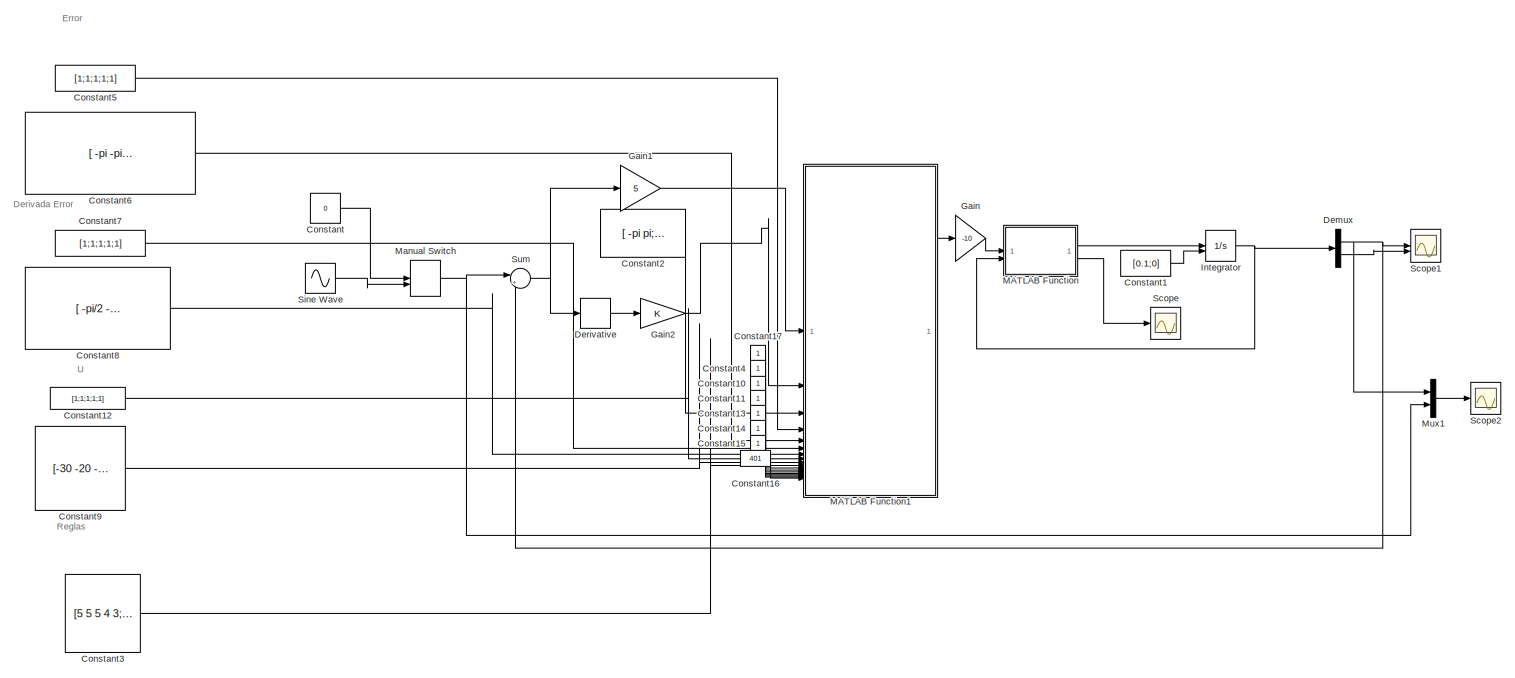
[diagram: root canvas - part 1/2, most of the canvas]
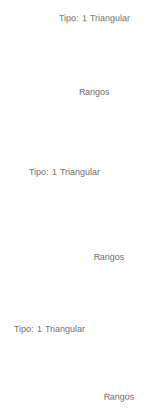
[diagram: root canvas - part 2/2, middle left region]
MODEL slx_3a1ebc4a5ca5
KIND model
CONFIG AbsTol = auto
CONFIG EnableMultiTasking = off
CONFIG FixedStep = auto
CONFIG MaxStep = auto
CONFIG MinStep = auto
CONFIG RelTol = 1e-3
CONFIG SampleTimeConstraint = Unconstrained
CONFIG SolverName = ode45
CONFIG StartTime = 0.0
CONFIG StopTime = 10
BLOCK [Constant] Constant
  Value = 0
BLOCK [Constant] Constant1
  Value = [0.1;0]
BLOCK [Constant] Constant10
BLOCK [Constant] Constant11
BLOCK [Constant] Constant12
  NameLocation = right
  Value = [1;1;1;1;1]
BLOCK [Constant] Constant13
BLOCK [Constant] Constant14
BLOCK [Constant] Constant15
BLOCK [Constant] Constant16
  Value = 401
BLOCK [Constant] Constant17
BLOCK [Constant] Constant2
  Value = [ -pi   pi;-pi/2 pi/2;-30   30 ]
BLOCK [Constant] Constant3
  Value = [5 5 5 4 3;\n5 5 4 3 2;\n             5 4 3 2 1;\n             4 3 2 1 1;\n             3 2 1 1 1]
BLOCK [Constant] Constant4
BLOCK [Constant] Constant5
  Value = [1;1;1;1;1]
BLOCK [Constant] Constant6
  Value = [ -pi   -pi/2   -pi/4;\n  -pi/2   -pi/4   0;\n  -pi/4   0     pi/4 ;\n   0     pi/4   pi/2 ;\n   pi/4   pi/2    pi ]
BLOCK [Constant] Constant7
  Value = [1;1;1;1;1]
BLOCK [Constant] Constant8
  Value = [ -pi/2   -pi/4   -pi/8;\n  -pi/4   -pi/8   0;\n  -pi/8   0     pi/8 ;\n   0     pi/8   pi/4 ;\n   pi/8   pi/4    pi/2 ]
BLOCK [Constant] Constant9
  Value = [-30 -20 -10; -20 -10 -0; -10 0 10; 0 10 20; 10 20 30]
BLOCK [Demux] Demux
  Outputs = 2
BLOCK [Derivative] Derivative
BLOCK [Gain] Gain
  Gain = -10
BLOCK [Gain] Gain1
  Gain = 5
BLOCK [Gain] Gain2
BLOCK [Integrator] Integrator
  InitialConditionSource = external
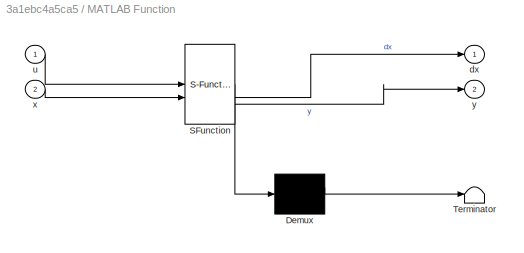
BLOCK [SubSystem] MATLAB Function
  ErrorFcn = Stateflow.Translate.translate
  PermitHierarchicalResolution = ExplicitOnly
  SFBlockType = MATLAB Function
  TreatAsAtomicUnit = on
BLOCK [Demux] MATLAB Function/ Demux 
  Outputs = 1
BLOCK [S-Function] MATLAB Function/ SFunction 
  EnableBusSupport = on
  FunctionName = sf_sfun
  PortCounts = [2 3]
  SFcnIsStateOwnerBlock = off
  SFunctionDeploymentMode = off
  Tag = Stateflow S-Function 2
BLOCK [Terminator] MATLAB Function/ Terminator 
BLOCK [Outport] MATLAB Function/dx
BLOCK [Inport] MATLAB Function/u
BLOCK [Inport] MATLAB Function/x
  Port = 2
BLOCK [Outport] MATLAB Function/y
  Port = 2
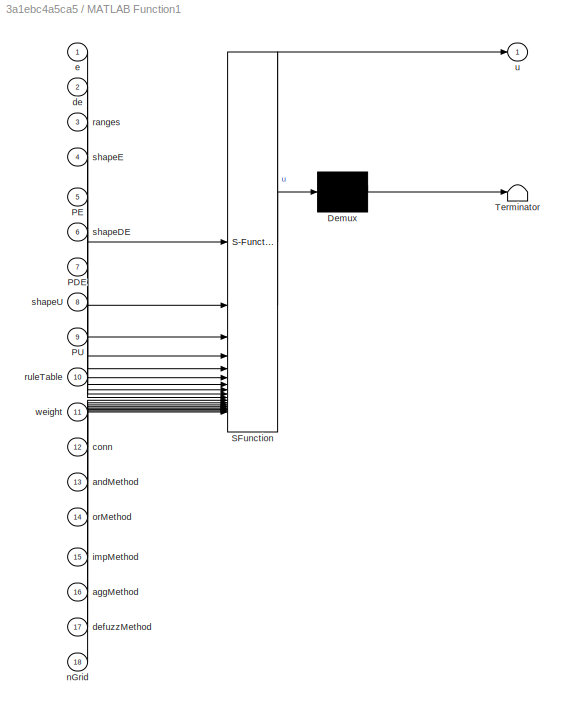
BLOCK [SubSystem] MATLAB Function1
  ErrorFcn = Stateflow.Translate.translate
  PermitHierarchicalResolution = ExplicitOnly
  SFBlockType = MATLAB Function
  TreatAsAtomicUnit = on
BLOCK [Demux] MATLAB Function1/ Demux 
  Outputs = 1
BLOCK [S-Function] MATLAB Function1/ SFunction 
  EnableBusSupport = on
  FunctionName = sf_sfun
  PortCounts = [18 2]
  SFcnIsStateOwnerBlock = off
  SFunctionDeploymentMode = off
  Tag = Stateflow S-Function 1
BLOCK [Terminator] MATLAB Function1/ Terminator 
BLOCK [Inport] MATLAB Function1/PDE
  Port = 7
BLOCK [Inport] MATLAB Function1/PE
  Port = 5
BLOCK [Inport] MATLAB Function1/PU
  Port = 9
BLOCK [Inport] MATLAB Function1/aggMethod
  Port = 16
BLOCK [Inport] MATLAB Function1/andMethod
  Port = 13
BLOCK [Inport] MATLAB Function1/conn
  Port = 12
BLOCK [Inport] MATLAB Function1/de
  Port = 2
BLOCK [Inport] MATLAB Function1/defuzzMethod
  Port = 17
BLOCK [Inport] MATLAB Function1/e
BLOCK [Inport] MATLAB Function1/impMethod
  Port = 15
BLOCK [Inport] MATLAB Function1/nGrid
  Port = 18
BLOCK [Inport] MATLAB Function1/orMethod
  Port = 14
BLOCK [Inport] MATLAB Function1/ranges
  Port = 3
BLOCK [Inport] MATLAB Function1/ruleTable
  Port = 10
BLOCK [Inport] MATLAB Function1/shapeDE
  Port = 6
BLOCK [Inport] MATLAB Function1/shapeE
  Port = 4
BLOCK [Inport] MATLAB Function1/shapeU
  Port = 8
BLOCK [Outport] MATLAB Function1/u
BLOCK [Inport] MATLAB Function1/weight
  Port = 11
BLOCK [ManualSwitch] Manual Switch
  CurrentSetting = 0
BLOCK [Mux] Mux1
  DisplayOption = bar
  Inputs = 2
BLOCK [Scope] Scope
  Floating = off
  NumInputPorts = 1
  ScopeSpecificationString = Simulink.scopes.TimeScopeBlockCfg('CurrentConfiguration', extmgr.ConfigurationSet(extmgr.Configuration('Core','General UI',true),extmgr.Configuration('Core','Source UI',true),extmgr.Configuration('Sources','WiredSimulink',true),extmgr.Configuration('Visuals','Time Domain',true,'SerializedDisplays',{struct('MinYLimReal','-0.32016','MaxYLimReal','0.36067','YLabelReal','','MinYLimMag','0.00000','MaxY...<+1459ch>
BLOCK [Scope] Scope1
  Floating = off
  NumInputPorts = 2
  ScopeSpecificationString = Simulink.scopes.TimeScopeBlockCfg('CurrentConfiguration', extmgr.ConfigurationSet(extmgr.Configuration('Core','General UI',true),extmgr.Configuration('Core','Source UI',true),extmgr.Configuration('Sources','WiredSimulink',true,'DataLoggingVariableName','ScopeData1'),extmgr.Configuration('Visuals','Time Domain',true,'SerializedDisplays',{struct('MinYLimReal','-0.76775','MaxYLimReal','11.04087','YLa...<+2269ch>
BLOCK [Scope] Scope2
  Floating = off
  NumInputPorts = 1
  ScopeSpecificationString = Simulink.scopes.TimeScopeBlockCfg('CurrentConfiguration', extmgr.ConfigurationSet(extmgr.Configuration('Core','General UI',true),extmgr.Configuration('Core','Source UI',true),extmgr.Configuration('Sources','WiredSimulink',true,'DataLoggingVariableName','ScopeData1'),extmgr.Configuration('Visuals','Time Domain',true,'SerializedDisplays',{struct('MinYLimReal','-0.31759','MaxYLimReal','0.35502','YLab...<+1471ch>
BLOCK [Sin] Sine Wave
  Amplitude = .25
  Frequency = 4
  SampleTime = 0
BLOCK [Sum] Sum
  Inputs = |+-
ANNOTATION (root): Rangos
ANNOTATION (root): Tipo: 1 Triangular
ANNOTATION (root): Error
ANNOTATION (root): Derivada Error
ANNOTATION (root): Reglas
ANNOTATION (root): U
LINE Constant10:1 -> MATLAB Function1:13
LINE Constant11:1 -> MATLAB Function1:14
LINE Constant12:1 -> MATLAB Function1:8
LINE Constant13:1 -> MATLAB Function1:15
LINE Constant14:1 -> MATLAB Function1:16
LINE Constant15:1 -> MATLAB Function1:17
LINE Constant16:1 -> MATLAB Function1:18
LINE Constant17:1 -> MATLAB Function1:11
LINE Constant1:1 -> Integrator:2
LINE Constant2:1 -> MATLAB Function1:3
LINE Constant3:1 -> MATLAB Function1:10
LINE Constant4:1 -> MATLAB Function1:12
LINE Constant5:1 -> MATLAB Function1:4
LINE Constant6:1 -> MATLAB Function1:5
LINE Constant7:1 -> MATLAB Function1:6
LINE Constant8:1 -> MATLAB Function1:7
LINE Constant9:1 -> MATLAB Function1:9
LINE Constant:1 -> Manual Switch:1
NET Demux:1 -> Mux1:1, Scope1:1, Sum:2
LINE Demux:2 -> Scope1:2
LINE Derivative:1 -> Gain2:1
LINE Gain1:1 -> MATLAB Function1:1
LINE Gain2:1 -> MATLAB Function1:2
LINE Gain:1 -> MATLAB Function:1
NET Integrator:1 -> Demux:1, MATLAB Function:2
LINE MATLAB Function1:1 -> Gain:1
LINE MATLAB Function:1 -> Integrator:1
LINE MATLAB Function:2 -> Scope:1
NET Manual Switch:1 -> Mux1:2, Sum:1
LINE Mux1:1 -> Scope2:1
LINE Sine Wave:1 -> Manual Switch:2
NET Sum:1 -> Derivative:1, Gain1:1
note: NET lines group one-source signal fan-out (src -> all destinations, sorted); 1:1 wires keep LINE
CHART MATLAB Function1 states=1 transitions=1
  STATE_LABEL 'eML_blk_kernel()'
  STATE_LABEL 'SCRIPT:\nfunction u = fuzzy_mamdani_fromTable( ...\n    e, de, ...\n    ranges, ...\n    shapeE, PE, ...\n    shapeDE, PDE, ...\n    shapeU, PU, ...\n    ruleTable, ...\n    weight, conn, ...\n    andMethod, orMethod, impMethod, aggMethod, ...\n    defuzzMethod, nGrid)\n%#codegen\n% Entradas:\n%  e, de            : escalares\n%  ranges           : 3x2  [emin emax; dmin dmax; umin umax]\n%  shapeE/DE        : nE ...<+3608ch>'
CHART MATLAB Function states=1 transitions=1
  STATE_LABEL 'eML_blk_kernel()'
  STATE_LABEL 'SCRIPT:\nfunction [dx, y] = fcn(u,x)\n\nl=1; m=1; g=9.81; b=0.5; I=m*l^2;\nx1=x(1);\nx2=x(2);\ndx1=x2;\ndx2=-g/l*sin(x1)-(b*l/I)*x2+u/I;\ndx = [dx1;dx2];\n\ny = x1;\n'
CHART  states=0 transitions=0
CHART  states=0 transitions=0
